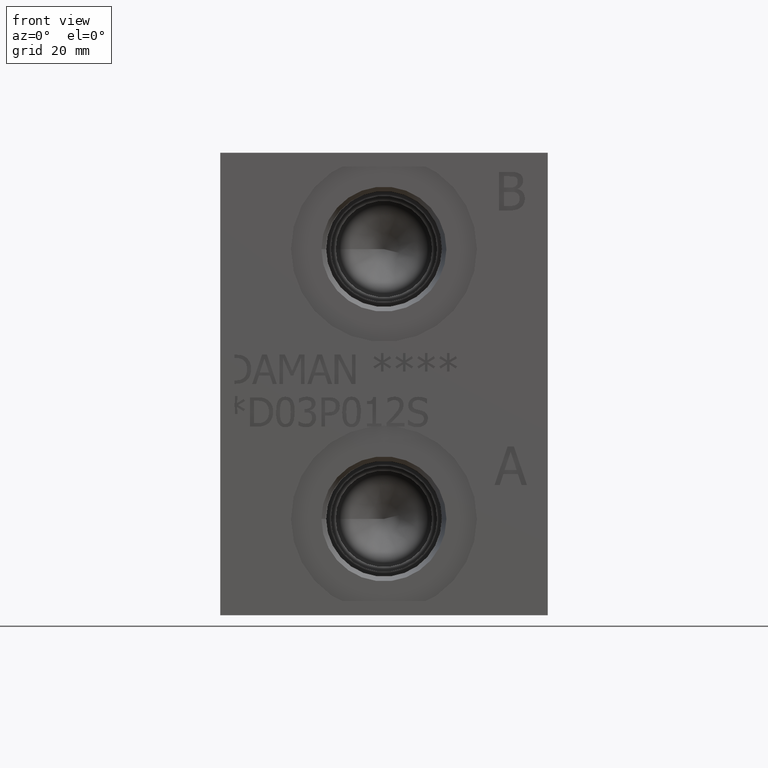
[diagram: clean part render]
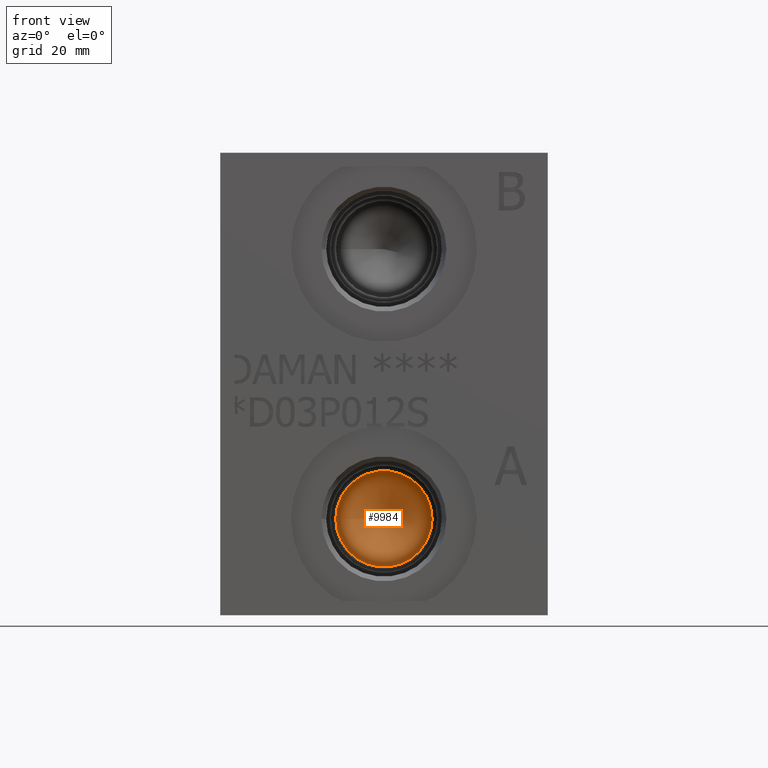
[diagram: same view with one face highlighted and labeled with its STEP entity id]
A machine part, front view. The second image highlights one B-rep face of the part: STEP entity #9984.
In plain terms, the highlighted conical surface has half-angle 60 deg.
Its self-contained STEP definition (entity closure, byte-faithful):
#23=CONICAL_SURFACE('',#10461,3.96875,1.0471975511966);
#124=CIRCLE('',#10462,7.9375);
#125=CIRCLE('',#10463,7.9375);
#1178=FACE_OUTER_BOUND('',#1744,.T.);
#1744=EDGE_LOOP('',(#8406,#8407,#8408,#8409));
#2735=LINE('',#16868,#3681);
#3681=VECTOR('',#12299,3.96875);
#4567=VERTEX_POINT('',#16864);
#4568=VERTEX_POINT('',#16865);
#4569=VERTEX_POINT('',#16867);
#5892=EDGE_CURVE('',#4567,#4568,#124,.T.);
#5893=EDGE_CURVE('',#4568,#4569,#2735,.T.);
#5894=EDGE_CURVE('',#4568,#4567,#125,.T.);
#8406=ORIENTED_EDGE('',*,*,#5892,.T.);
#8407=ORIENTED_EDGE('',*,*,#5893,.T.);
#8408=ORIENTED_EDGE('',*,*,#5893,.F.);
#8409=ORIENTED_EDGE('',*,*,#5894,.T.);
#9984=ADVANCED_FACE('',(#1178),#23,.F.);
#10461=AXIS2_PLACEMENT_3D('',#16863,#12295,#12296);
#10462=AXIS2_PLACEMENT_3D('',#16866,#12297,#12298);
#10463=AXIS2_PLACEMENT_3D('',#16869,#12300,#12301);
#12295=DIRECTION('center_axis',(0.,-1.,0.));
#12296=DIRECTION('ref_axis',(1.,0.,0.));
#12297=DIRECTION('center_axis',(0.,-1.,0.));
#12298=DIRECTION('ref_axis',(1.,0.,0.));
#12299=DIRECTION('',(0.866025403784439,0.5,1.06057523872491E-16));
#12300=DIRECTION('center_axis',(0.,-1.,0.));
#12301=DIRECTION('ref_axis',(1.,0.,0.));
#16863=CARTESIAN_POINT('Origin',(26.9748,25.5142788808463,15.875));
#16864=CARTESIAN_POINT('',(34.9123,23.22292,15.875));
#16865=CARTESIAN_POINT('',(19.0373,23.22292,15.875));
#16866=CARTESIAN_POINT('Origin',(26.9748,23.22292,15.875));
#16867=CARTESIAN_POINT('',(26.9748,27.8056377616927,15.875));
#16868=CARTESIAN_POINT('',(23.00605,25.5142788808463,15.875));
#16869=CARTESIAN_POINT('Origin',(26.9748,23.22292,15.875));